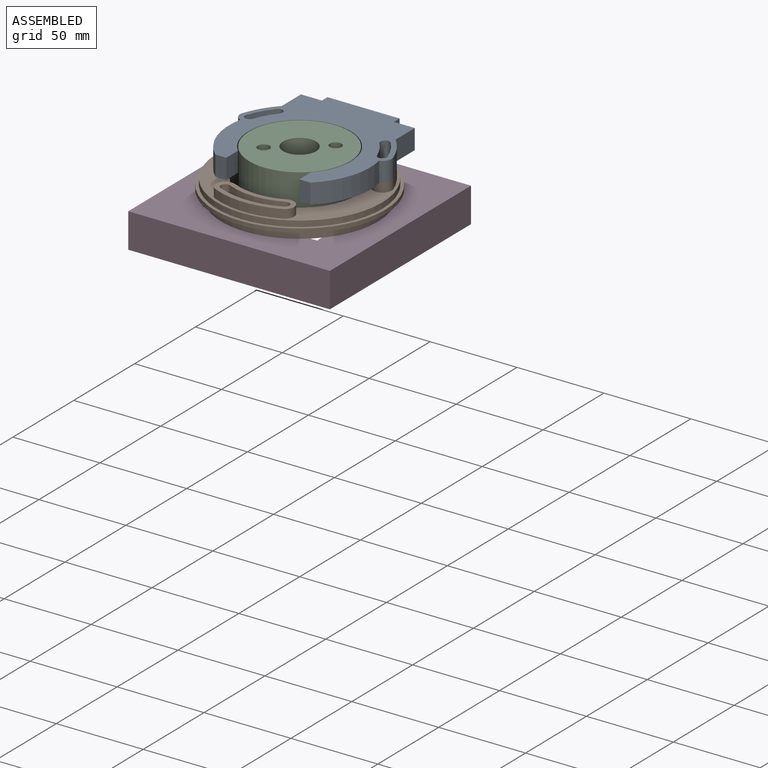
[diagram: assembled view]
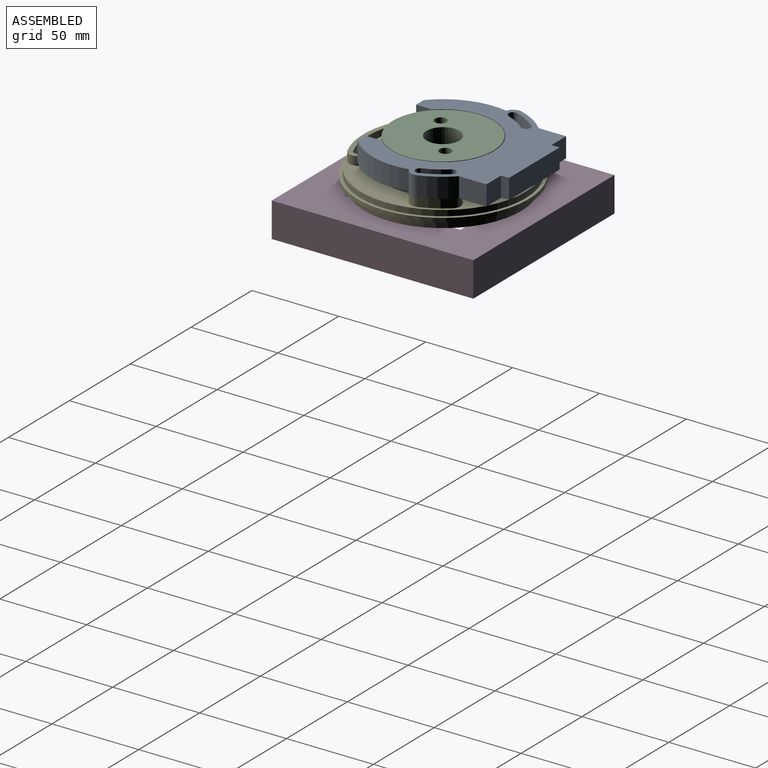
[diagram: assembled view, second angle]
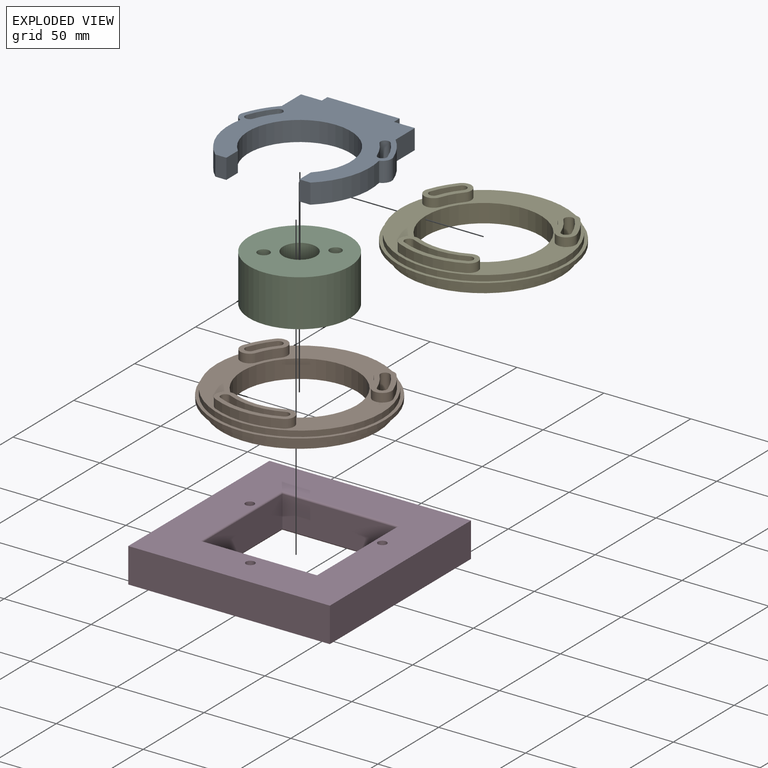
[diagram: exploded view]
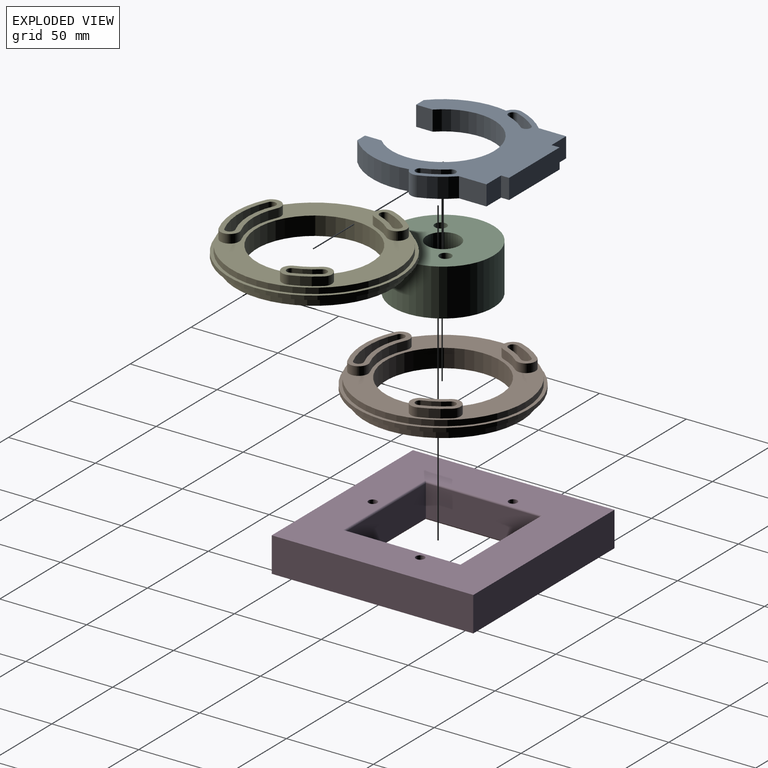
[diagram: exploded view, second angle]
ASSEMBLY  parts=5 mates=3
PART A: 28 faces, bbox 87.1x82.7x11.5 mm
  f0: cylinder r=43.1mm len=13.56mm, axis (0,0,-1), area 181.1mm2, adj f1,f25,f26,f27
  f1: cylinder r=2.65mm len=11.5mm, axis (0,0,-1), area 95.7mm2, adj f0,f2,f26,f27
  f2: cylinder r=37.8mm len=11.9mm, axis (0,0,-1), area 158.9mm2, adj f1,f25,f26,f27
  f3: cylinder r=43.1mm len=13.56mm, axis (0,0,-1), area 181.1mm2, adj f4,f23,f26,f27
  f4: cylinder r=2.65mm len=11.5mm, axis (0,0,-1), area 95.7mm2, adj f3,f5,f26,f27
  f5: cylinder r=37.8mm len=11.9mm, axis (0,0,-1), area 158.9mm2, adj f4,f23,f26,f27
  f6: cylinder r=40.75mm len=38.65mm, axis (0,0,-1), area 489.2mm2, adj f7,f24,f26,f27
  f7: cylinder r=5.4mm len=11.5mm, axis (0,0,-1), area 95.4mm2, adj f6,f8,f26,f27
  f8: cylinder r=45.84mm len=16.99mm, axis (0,0,-1), area 231.8mm2, adj f7,f9,f26,f27
  f9: plane 15.8x11.5mm, normal (1,0,0), area 181.7mm2, adj f8,f10,f26,f27
  f10: plane 12x11.5mm, normal (0,1,0), area 138mm2, adj f9,f11,f26,f27
  f11: plane 11.5x4.62mm, normal (1,0,0), area 53.1mm2, adj f10,f12,f26,f27
  f12: plane 41.5x11.5mm, normal (0,1,0), area 477.3mm2, adj f11,f13,f26,f27
  f13: plane 11.5x4.62mm, normal (-1,0,0), area 53.1mm2, adj f12,f14,f26,f27
  f14: plane 12x11.5mm, normal (0,1,0), area 138mm2, adj f13,f15,f26,f27
  f15: plane 15.8x11.5mm, normal (-1,0,0), area 181.7mm2, adj f14,f16,f26,f27
  f16: cylinder r=45.84mm len=17.33mm, axis (0,0,-1), area 235.9mm2, adj f15,f17,f26,f27
  f17: cylinder r=5.18mm len=11.5mm, axis (0,0,-1), area 92.4mm2, adj f16,f18,f26,f27
  f18: cylinder r=40.75mm len=38.65mm, axis (0,0,-1), area 489.2mm2, adj f17,f19,f26,f27
  f19: plane 11.5x6.32mm, normal (0,-1,0), area 72.7mm2, adj f18,f20,f26,f27
  f20: plane 11.5x9.51mm, normal (1,0,0), area 109.4mm2, adj f19,f21,f26,f27
  f21: cylinder r=29.5mm len=59mm, axis (0,0,-1), area 1594.1mm2, adj f20,f22,f26,f27
  f22: plane 11.5x9.51mm, normal (-1,0,0), area 109.4mm2, adj f21,f24,f26,f27
  f23: cylinder r=2.65mm len=11.5mm, axis (0,0,-1), area 95.7mm2, adj f3,f5,f26,f27
  f24: plane 11.5x6.32mm, normal (0,-1,0), area 72.7mm2, adj f6,f22,f26,f27
  f25: cylinder r=2.65mm len=11.5mm, axis (0,0,-1), area 95.7mm2, adj f0,f2,f26,f27
  f26: plane 87.11x82.73mm, normal (0,0,1), area 2934.3mm2, adj f0,f1,f2,f3,f4,f5,f6,f7
  f27: plane 87.11x82.73mm, normal (0,0,-1), area 2934.3mm2, adj f0,f1,f2,f3,f4,f5,f6,f7
PART B: 35 faces, bbox 98.6x98.6x15.6 mm
  f0: plane 90x90mm, normal (0,0,-1), area 2530.5mm2, adj f2,f3,f8,f9,f10,f11,f12,f13
  f1: plane 95x95mm, normal (0,0,1), area 2691.6mm2, adj f2,f4,f20,f21,f22,f23,f25,f26
  f2: cylinder r=33mm len=66mm, axis (0,0,1), area 2197.9mm2, adj f0,f1
  f3: cylinder r=45mm len=90mm, axis (0,0,1), area 1413.7mm2, adj f0,f5
  f4: cylinder r=47.5mm len=95mm, axis (0,0,-1), area 984.9mm2, adj f1,f7
  f5: plane 98.6x98.6mm, normal (0,0,-1), area 1273.9mm2, adj f3,f6
  f6: cylinder r=49.3mm len=98.6mm, axis (0,0,-1), area 712.5mm2, adj f5,f7
  f7: plane 98.6x98.6mm, normal (0,0,1), area 547.4mm2, adj f4,f6
  f8: cylinder r=43.1mm len=15.6mm, axis (0,0,-1), area 245.7mm2, adj f0,f9,f11,f29
  f9: cylinder r=2.65mm len=15.6mm, axis (0,0,-1), area 129.9mm2, adj f0,f8,f10,f29
  f10: cylinder r=37.8mm len=15.6mm, axis (0,0,-1), area 215.5mm2, adj f0,f9,f11,f29
  f11: cylinder r=2.65mm len=15.6mm, axis (0,0,-1), area 129.9mm2, adj f0,f8,f10,f29
  f12: cylinder r=37.8mm len=31.96mm, axis (0,0,-1), area 514.8mm2, adj f0,f13,f15,f34
  f13: cylinder r=2.65mm len=15.6mm, axis (0,0,-1), area 129.9mm2, adj f0,f12,f14,f34
  f14: cylinder r=43.1mm len=36.44mm, axis (0,0,-1), area 586.9mm2, adj f0,f13,f15,f34
  f15: cylinder r=2.65mm len=15.6mm, axis (0,0,-1), area 129.9mm2, adj f0,f12,f14,f34
  f16: cylinder r=2.65mm len=15.6mm, axis (0,0,-1), area 129.9mm2, adj f0,f17,f19,f24
  f17: cylinder r=37.8mm len=15.6mm, axis (0,0,-1), area 215.5mm2, adj f0,f16,f18,f24
  f18: cylinder r=2.65mm len=15.6mm, axis (0,0,-1), area 129.9mm2, adj f0,f17,f19,f24
  f19: cylinder r=43.1mm len=15.6mm, axis (0,0,-1), area 245.7mm2, adj f0,f16,f18,f24
  f20: cylinder r=5.4mm len=9.51mm, axis (0,0,-1), area 84.8mm2, adj f1,f21,f23,f24
  f21: cylinder r=45.85mm len=14.43mm, axis (0,0,-1), area 83.8mm2, adj f1,f20,f22,f24
  f22: cylinder r=5.4mm len=10.49mm, axis (0,0,-1), area 84.8mm2, adj f1,f21,f23,f24
  f23: cylinder r=35.05mm len=11.03mm, axis (0,0,-1), area 64mm2, adj f1,f20,f22,f24
  f24: plane 23.53x18.15mm, normal (0,0,1), area 150.8mm2, adj f16,f17,f18,f19,f20,f21,f22,f23
  f25: cylinder r=35.05mm len=11.03mm, axis (0,0,-1), area 64mm2, adj f1,f26,f28,f29
  f26: cylinder r=5.4mm len=10.49mm, axis (0,0,-1), area 84.8mm2, adj f1,f25,f27,f29
  f27: cylinder r=45.85mm len=14.43mm, axis (0,0,-1), area 83.8mm2, adj f1,f26,f28,f29
  f28: cylinder r=5.4mm len=9.51mm, axis (0,0,-1), area 84.8mm2, adj f1,f25,f27,f29
  f29: plane 23.53x18.15mm, normal (0,0,1), area 150.8mm2, adj f8,f9,f10,f11,f25,f26,f27,f28
  f30: cylinder r=35.05mm len=29.63mm, axis (0,0,-1), area 153mm2, adj f1,f31,f33,f34
  f31: cylinder r=5.4mm len=10.29mm, axis (0,0,-1), area 84.8mm2, adj f1,f30,f32,f34
  f32: cylinder r=45.85mm len=38.77mm, axis (0,0,-1), area 200.1mm2, adj f1,f31,f33,f34
  f33: cylinder r=5.4mm len=10.29mm, axis (0,0,-1), area 84.8mm2, adj f1,f30,f32,f34
  f34: plane 45x14.59mm, normal (0,0,1), area 263.8mm2, adj f12,f13,f14,f15,f30,f31,f32,f33
PART C: 6 faces, bbox 58x58x27 mm
  f0: cylinder r=9.5mm len=27mm, axis (0,0,-1), area 1611.6mm2, adj f4,f5
  f1: cylinder r=3.4mm len=27mm, axis (0,0,-1), area 576.8mm2, adj f4,f5
  f2: cylinder r=3.4mm len=27mm, axis (0,0,-1), area 576.8mm2, adj f4,f5
  f3: cylinder r=29mm len=58mm, axis (0,0,-1), area 4919.7mm2, adj f4,f5
  f4: plane 58x58mm, normal (0,0,1), area 2285.9mm2, adj f0,f1,f2,f3
  f5: plane 58x58mm, normal (0,0,-1), area 2285.9mm2, adj f0,f1,f2,f3
PART D: 21 faces, bbox 116x116x20 mm
  f0: plane 116x20mm, normal (-1,0,0), area 2320mm2, adj f1,f10,f11,f12
  f1: plane 116x20mm, normal (0,1,0), area 2320mm2, adj f0,f2,f11,f12
  f2: plane 116x20mm, normal (1,0,0), area 2320mm2, adj f1,f10,f11,f12
  f3: plane 66x18mm, normal (0,-1,0), area 1188mm2, adj f4,f8,f16,f20
  f4: plane 66x18mm, normal (1,0,0), area 1188mm2, adj f3,f5,f15,f19
  f5: plane 66x18mm, normal (0,1,0), area 1188mm2, adj f4,f8,f13,f17
  f6: cylinder r=2.5mm len=20mm, axis (0,0,1), area 314.2mm2, adj f11,f12
  f7: cylinder r=2.5mm len=20mm, axis (0,0,1), area 314.2mm2, adj f11,f12
  f8: plane 66x18mm, normal (-1,0,0), area 1188mm2, adj f3,f5,f14,f18
  f9: cylinder r=2.5mm len=20mm, axis (0,0,1), area 314.2mm2, adj f11,f12
  f10: plane 116x20mm, normal (0,-1,0), area 2320mm2, adj f0,f2,f11,f12
  f11: plane 116x116mm, normal (0,0,-1), area 8773.1mm2, adj f0,f1,f2,f6,f7,f9,f10,f17
  f12: plane 116x116mm, normal (0,0,1), area 8773.1mm2, adj f0,f1,f2,f6,f7,f9,f10,f13
  f13: cylinder r=1mm len=68mm, axis (1,0,0), area 104.8mm2, adj f5,f12,f14,f15
  f14: cylinder r=1mm len=68mm, axis (0,1,0), area 104.8mm2, adj f8,f12,f13,f16
  f15: cylinder r=1mm len=68mm, axis (0,-1,0), area 104.8mm2, adj f4,f12,f13,f16
  f16: cylinder r=1mm len=68mm, axis (-1,0,0), area 104.8mm2, adj f3,f12,f14,f15
  f17: cylinder r=1mm len=68mm, axis (-1,0,0), area 104.8mm2, adj f5,f11,f18,f19
  f18: cylinder r=1mm len=68mm, axis (0,-1,0), area 104.8mm2, adj f8,f11,f17,f20
  f19: cylinder r=1mm len=68mm, axis (0,1,0), area 104.8mm2, adj f4,f11,f17,f20
  f20: cylinder r=1mm len=68mm, axis (1,0,0), area 104.8mm2, adj f3,f11,f18,f19
PART E: same geometry as B
PLACE A t=(-0.05,0.06,-2.67)mm
PLACE B t=(-0.05,0.06,-2.67)mm fixed
PLACE C rot(axis=(0,0,1),38.7deg) t=(-0.05,0.06,-2.67)mm
PLACE D t=(-0.05,0.06,-2.67)mm
PLACE E t=(-0.05,0.06,-2.67)mm
MATE fastened A.f23 <-> B.f18  axis (0,0,-1) through (-38.17,13.58,7.93)mm
MATE fastened D.f7 <-> B.f9  axis (0,0,1) through (38.07,13.58,-7.67)mm
MATE revolute C.f0 <-> A.f21  axis (0,0,1) through (-0.05,0.06,19.43)mm
